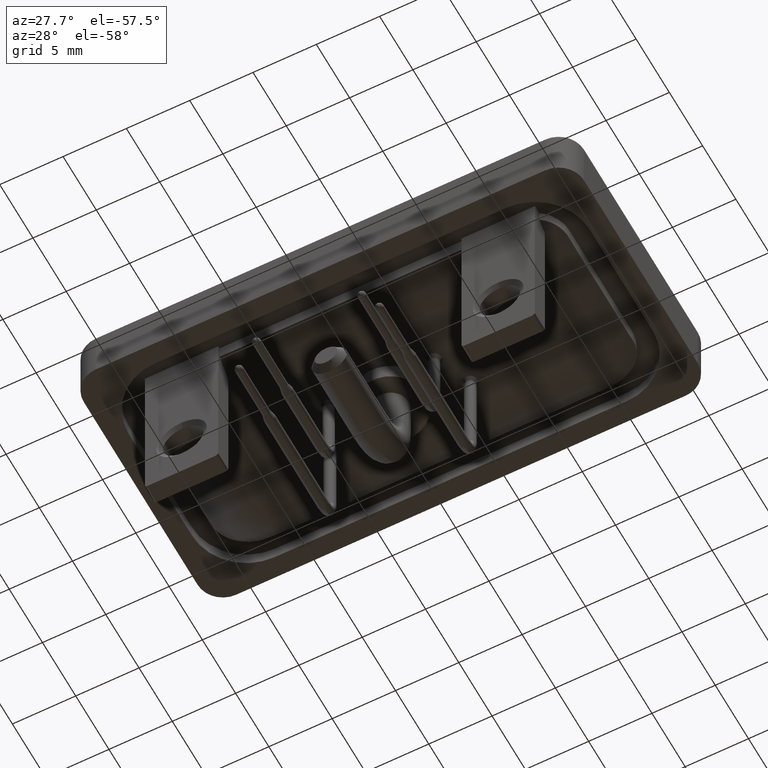
[diagram: clean part render]
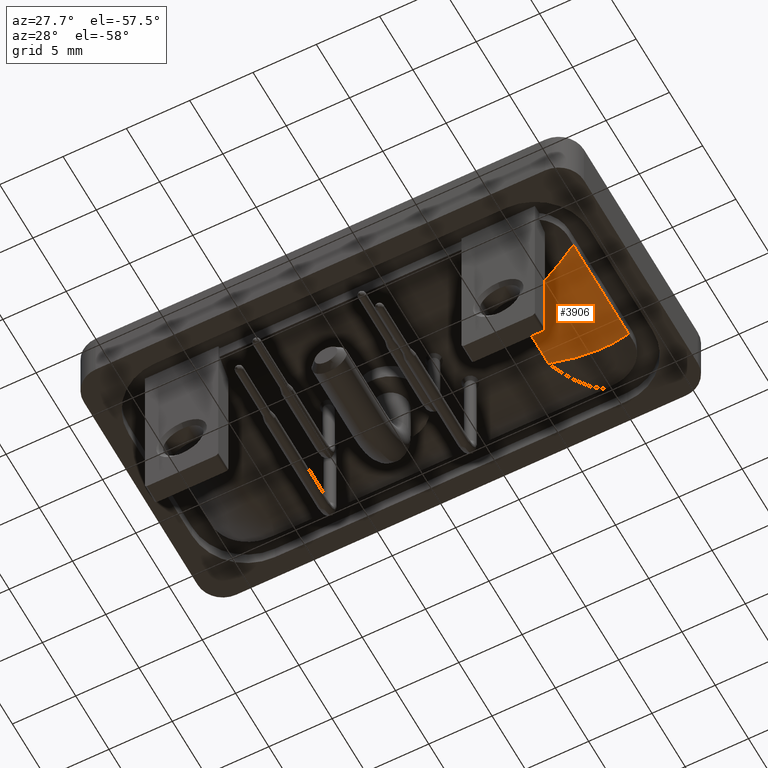
[diagram: same view with one face highlighted and labeled with its STEP entity id]
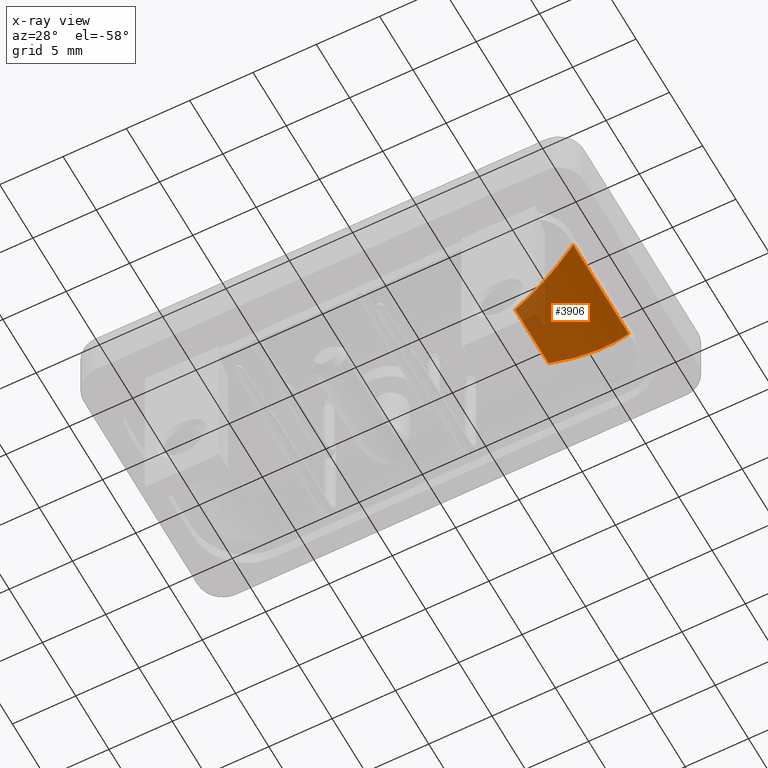
[diagram: x-ray of the same camera — body ghosted, the highlighted face saturated]
A machine part, auxiliary view. The second image highlights one B-rep face of the part: STEP entity #3906.
The next image is the same camera in x-ray: the body ghosted, the highlighted face saturated — about 13% of this face is hidden behind the body in this view.
In plain terms, the highlighted cylindrical surface (partial cylindrical patch) has radius 8 mm, axis along (0, 1, 0).
Its self-contained STEP definition (entity closure, byte-faithful):
#519 = DIRECTION ( 'NONE',  ( 0.000000000000000000, 0.000000000000000000, 1.000000000000000000 ) ) ;
#538 = CARTESIAN_POINT ( 'NONE',  ( 28.32483310936258647, -3.954361210932549220, -4.256308957304279161 ) ) ;
#575 = CARTESIAN_POINT ( 'NONE',  ( 29.10000000000000853, -10.55000000000000071, -3.600000000000003642 ) ) ;
#739 = CARTESIAN_POINT ( 'NONE',  ( 26.79383626754454895, -3.501154048558468901, -5.107679139537450119 ) ) ;
#882 = B_SPLINE_CURVE_WITH_KNOTS ( 'NONE', 3,
 ( #10249, #7416, #4178, #10552, #16634, #20205, #12235, #4279 ),
 .UNSPECIFIED., .F., .F.,
 ( 4, 2, 2, 4 ),
 ( -1.810599307599634148E-05, 0.003105052887095900715, 0.004666632327181844536, 0.006228211767267788357 ),
 .UNSPECIFIED. ) ;
#2593 = CARTESIAN_POINT ( 'NONE',  ( 23.64312360411197389, -10.55000000000000071, -5.750000000000004441 ) ) ;
#2908 = DIRECTION ( 'NONE',  ( -0.000000000000000000, 1.000000000000000000, -0.000000000000000000 ) ) ;
#3112 = AXIS2_PLACEMENT_3D ( 'NONE', #16725, #11604, #519 ) ;
#3869 = FACE_OUTER_BOUND ( 'NONE', #12249, .T. ) ;
#3906 = ADVANCED_FACE ( 'NONE', ( #3869 ), #6993, .T. ) ;
#4178 = CARTESIAN_POINT ( 'NONE',  ( 25.62668006290605049, 3.142327862245054781, -5.564098547000241979 ) ) ;
#4187 = CARTESIAN_POINT ( 'NONE',  ( 28.72492508289715829, -4.065745887188124463, -3.949869651594571707 ) ) ;
#4279 = CARTESIAN_POINT ( 'NONE',  ( 29.10000000000000853, 4.162641801028561517, -3.600000000000003642 ) ) ;
#4945 = EDGE_CURVE ( 'NONE', #12919, #16491, #10094, .T. ) ;
#5748 = CARTESIAN_POINT ( 'NONE',  ( 24.63495530009374335, -2.825874458944817924, -5.692170822727407931 ) ) ;
#6480 = ORIENTED_EDGE ( 'NONE', *, *, #20726, .T. ) ;
#6993 = CYLINDRICAL_SURFACE ( 'NONE', #3112, 8.000000000000000000 ) ;
#7318 = ORIENTED_EDGE ( 'NONE', *, *, #11743, .T. ) ;
#7320 = CARTESIAN_POINT ( 'NONE',  ( 24.26365609745591811, -2.707787531687048777, -5.726866007232320754 ) ) ;
#7416 = CARTESIAN_POINT ( 'NONE',  ( 24.63502498655319073, 2.826219003928438500, -5.750000000000006217 ) ) ;
#8579 = CARTESIAN_POINT ( 'NONE',  ( 29.10000000000000853, -4.162641801028560629, -3.600000000000003642 ) ) ;
#8718 = DIRECTION ( 'NONE',  ( -0.000000000000000000, 1.000000000000000000, -0.000000000000000000 ) ) ;
#9239 = CARTESIAN_POINT ( 'NONE',  ( 23.64312360411197389, -2.510111337287044275, -5.750000000000004441 ) ) ;
#10094 = LINE ( 'NONE', #575, #15179 ) ;
#10249 = CARTESIAN_POINT ( 'NONE',  ( 23.64312360411197389, 2.510111337287045163, -5.750000000000000888 ) ) ;
#10356 = VERTEX_POINT ( 'NONE', #9239 ) ;
#10358 = CARTESIAN_POINT ( 'NONE',  ( 26.09588604229416120, -3.286606373820483373, -5.381099976637532478 ) ) ;
#10462 = CARTESIAN_POINT ( 'NONE',  ( 27.02392924460848889, -3.571164534069831031, -5.004860289151282338 ) ) ;
#10552 = CARTESIAN_POINT ( 'NONE',  ( 27.01999233353197027, 3.570696537890556410, -5.019485240794519854 ) ) ;
#10560 = CARTESIAN_POINT ( 'NONE',  ( 23.76582104569228449, -2.549213613629671915, -5.750000000000006217 ) ) ;
#11350 = ORIENTED_EDGE ( 'NONE', *, *, #4945, .F. ) ;
#11604 = DIRECTION ( 'NONE',  ( -0.000000000000000000, 1.000000000000000000, -0.000000000000000000 ) ) ;
#11743 = EDGE_CURVE ( 'NONE', #10356, #15569, #17016, .T. ) ;
#11884 = B_SPLINE_CURVE_WITH_KNOTS ( 'NONE', 3,
 ( #8579, #4187, #538, #19702, #18223, #10462, #739, #10358, #13614, #18538, #5748, #7320, #13404, #14980, #10560, #16948 ),
 .UNSPECIFIED., .F., .F.,
 ( 4, 2, 2, 2, 2, 2, 2, 4 ),
 ( 0.000000000000000000, 0.001545329449195130978, 0.002317994173792697118, 0.003090658898390263257, 0.004635988347585403777, 0.005408653072182978590, 0.005794985434481771634, 0.006181317796780563811 ),
 .UNSPECIFIED. ) ;
#12235 = CARTESIAN_POINT ( 'NONE',  ( 28.72585245456134828, 4.065985462059102495, -3.949004599877554700 ) ) ;
#12249 = EDGE_LOOP ( 'NONE', ( #11350, #6480, #7318, #20195 ) ) ;
#12919 = VERTEX_POINT ( 'NONE', #18898 ) ;
#13350 = VECTOR ( 'NONE', #2908, 1000.000000000000000 ) ;
#13404 = CARTESIAN_POINT ( 'NONE',  ( 24.13965062613980095, -2.668308653928887608, -5.735543278132528400 ) ) ;
#13614 = CARTESIAN_POINT ( 'NONE',  ( 25.61502816642564895, -3.135947455053754052, -5.519118737435234401 ) ) ;
#14224 = CARTESIAN_POINT ( 'NONE',  ( 29.10000000000000853, 4.162641801028561517, -3.600000000000003642 ) ) ;
#14980 = CARTESIAN_POINT ( 'NONE',  ( 23.89140017127845184, -2.589234292863000331, -5.747111933487454749 ) ) ;
#15179 = VECTOR ( 'NONE', #8718, 1000.000000000000000 ) ;
#15569 = VERTEX_POINT ( 'NONE', #19249 ) ;
#16491 = VERTEX_POINT ( 'NONE', #14224 ) ;
#16634 = CARTESIAN_POINT ( 'NONE',  ( 27.47042541587699205, 3.706344817276427506, -4.792999654193596193 ) ) ;
#16725 = CARTESIAN_POINT ( 'NONE',  ( 23.64312360411197389, -10.55000000000000071, 2.249999999999996003 ) ) ;
#16948 = CARTESIAN_POINT ( 'NONE',  ( 23.64312360411197389, -2.510111337287044275, -5.750000000000004441 ) ) ;
#17016 = LINE ( 'NONE', #2593, #13350 ) ;
#17771 = EDGE_CURVE ( 'NONE', #15569, #16491, #882, .T. ) ;
#18223 = CARTESIAN_POINT ( 'NONE',  ( 27.47152722500022293, -3.705497744345825240, -4.778952291023678356 ) ) ;
#18538 = CARTESIAN_POINT ( 'NONE',  ( 24.88155192855411713, -2.904139297470750503, -5.657477390105510651 ) ) ;
#18898 = CARTESIAN_POINT ( 'NONE',  ( 29.10000000000000853, -4.162641801028560629, -3.600000000000003642 ) ) ;
#19249 = CARTESIAN_POINT ( 'NONE',  ( 23.64312360411197389, 2.510111337287045163, -5.750000000000000888 ) ) ;
#19702 = CARTESIAN_POINT ( 'NONE',  ( 27.68931026211545188, -3.769913700968249071, -4.655866242800945187 ) ) ;
#20195 = ORIENTED_EDGE ( 'NONE', *, *, #17771, .T. ) ;
#20205 = CARTESIAN_POINT ( 'NONE',  ( 28.32096085712155187, 3.953278865868564473, -4.259218226612680347 ) ) ;
#20726 = EDGE_CURVE ( 'NONE', #12919, #10356, #11884, .T. ) ;